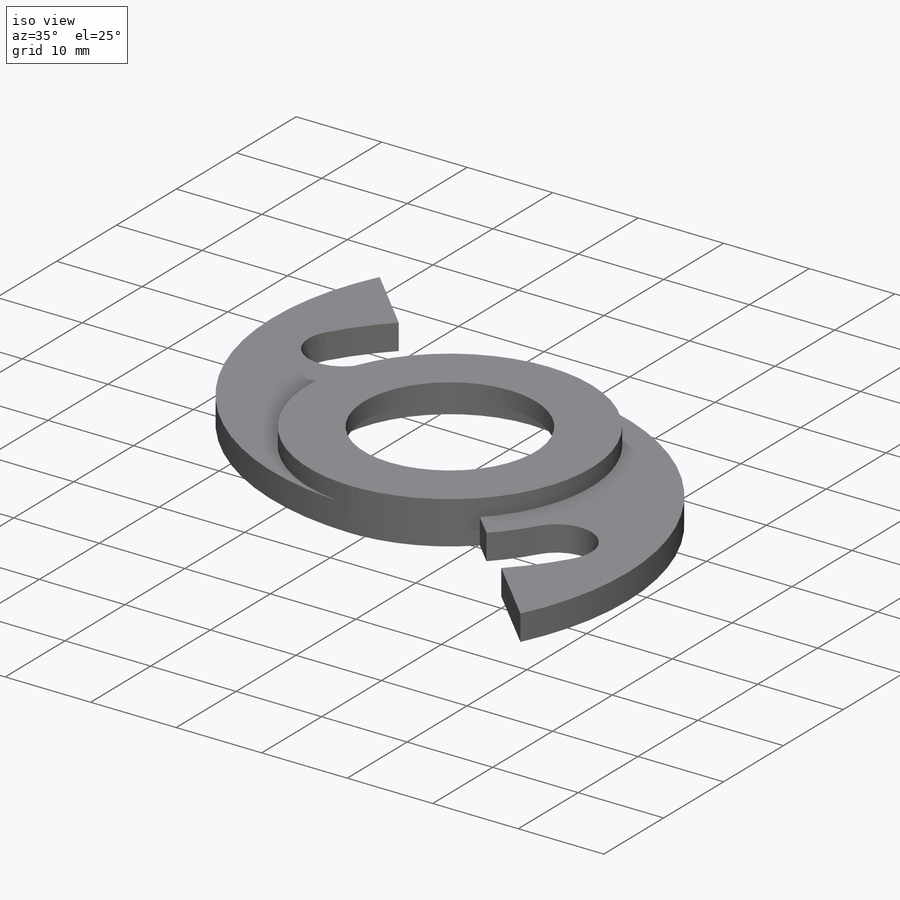
[diagram: iso view]
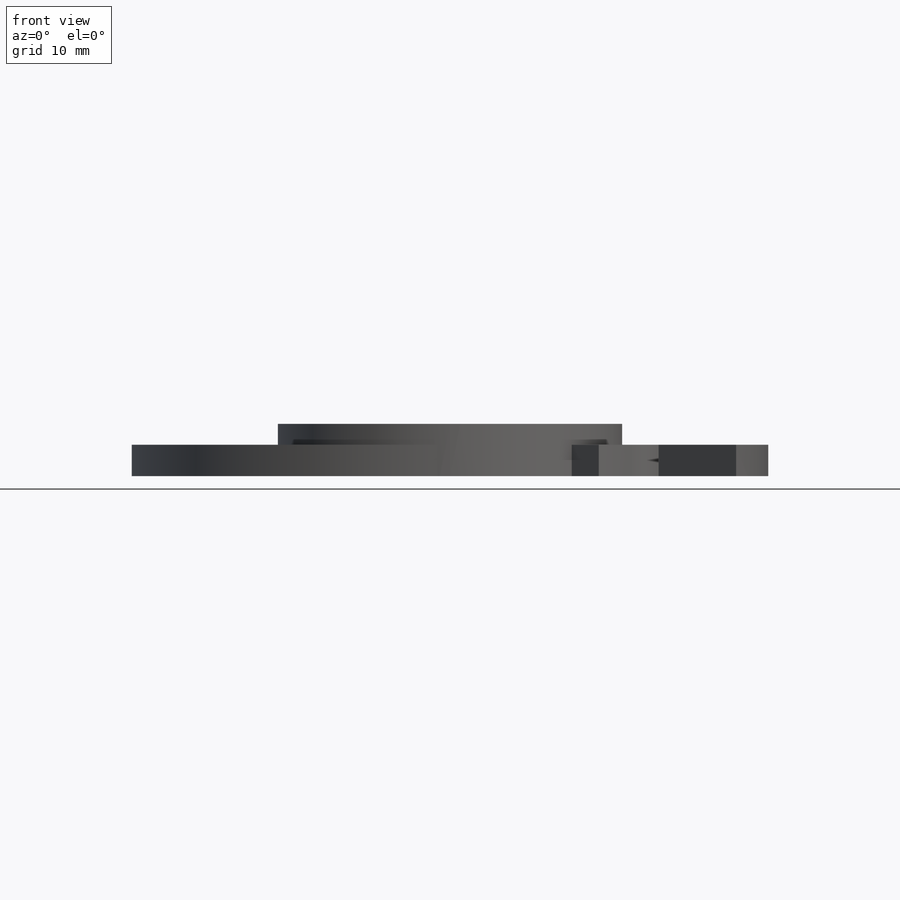
[diagram: front view]
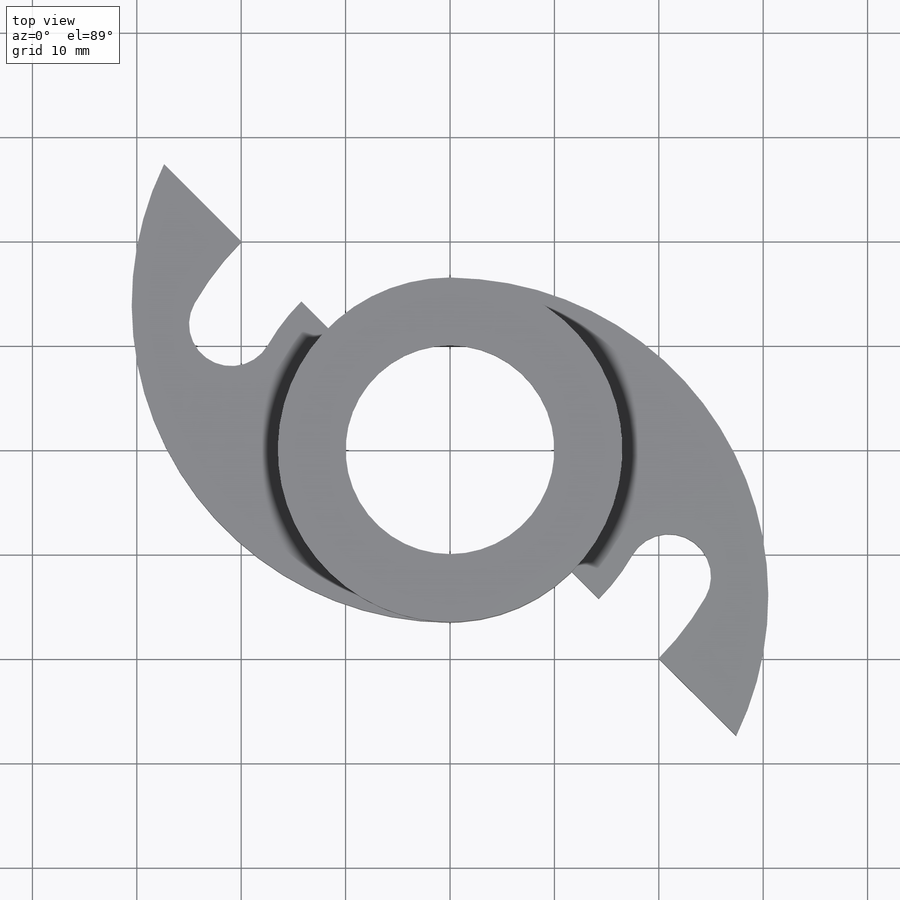
[diagram: top view]
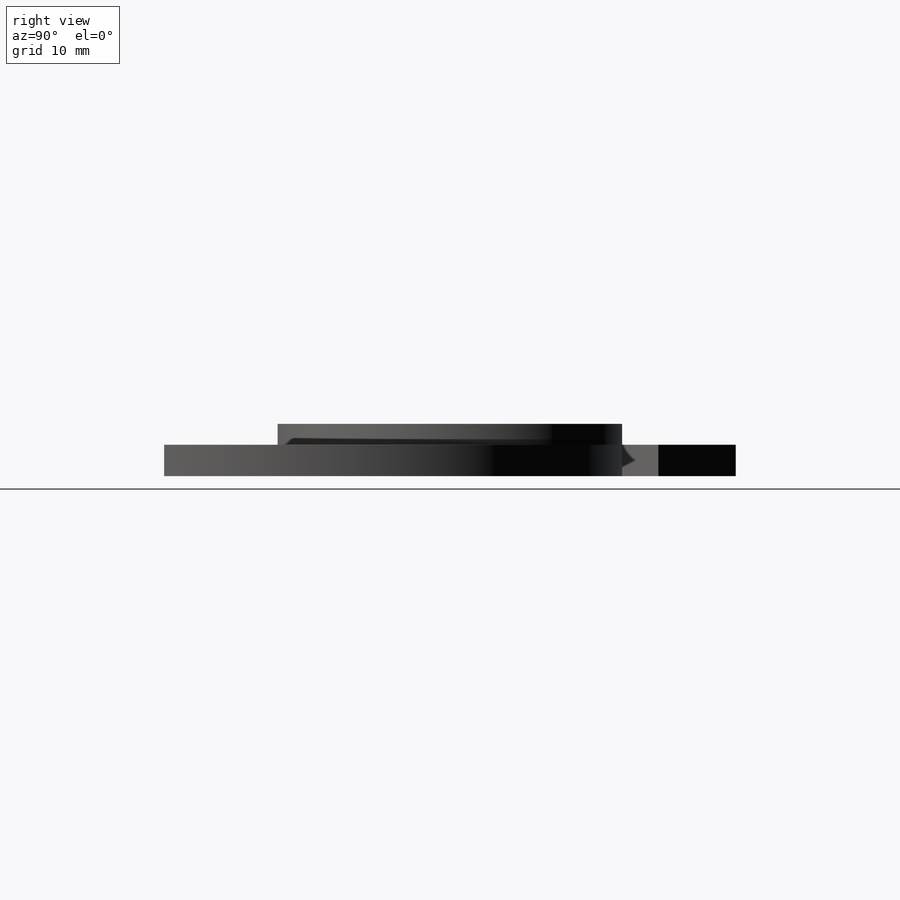
[diagram: right view]
SOLIDWORKS PART (.sldprt)
format: sldprt  version: not decoded by parser v0  size: 238,592 bytes
history: native  units: mm
features: sketch x8, plane x3, cut_extrude x3, extrude x2, material x1 (+8 scaffold rows collapsed)
feature tree (25):
  scaffold x8  (default folders/planes/origin — collapsed)
  material  "Materiale <non specificato>"
  plane  "Piano frontale"
  plane  "Piano superiore"
  plane  "Piano destro"
  sketch  "Schizzo1"  dims[D1=~9.99571mm]
  extrude  "Estrusione-Estrusione1"  Depth=5mm
  sketch  "Schizzo2"  dims[D1=27.0mm]
  cut_extrude  "Taglio-Estrusione1"  Depth=3mm
  sketch  "Schizzo4"  dims[D5=8.1mm D6=8.1mm D1=7.5mm D2=23.0mm D3=23.0mm D4=7.5mm]
  sketch  "Schizzo3"  dims[c1.D1=~23.058931mm c2.D1=45.0deg c2.D2=5.0mm c2.D3=5.0mm c3.D2=4.0mm c3.D3=14.0mm]
  extrude  "Estrusione-Estrusione2"  Depth=3mm
  sketch  "Schizzo6"
  sketch  "Schizzo7"  dims[c1.D2=~24.191941mm c1.D1=4.05mm c2.D2=~28.241941mm c3.D2=60.0deg c3.D3=8.1mm]
  cut_extrude  "Taglio-Estrusione2"  [1 undecoded]
  sketch  "Schizzo8"  dims[D1=4.05mm]
  cut_extrude  "Taglio-Estrusione3"  Depth=10mm
  sketch  "Schizzo9"
decode coverage: 10 of 13 modeling features carry decoded parameters
note: ~ marks probable driven/reference dimensions
note: 1 parameter value undecoded
note: suppression state not decoded; provenance and decode notes live in map.json
